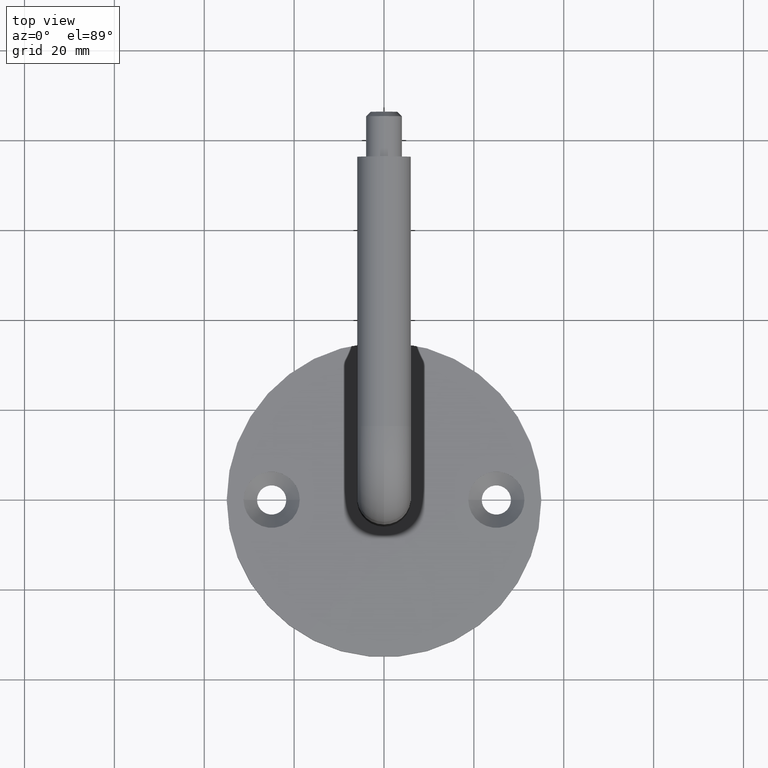
[diagram: clean part render]
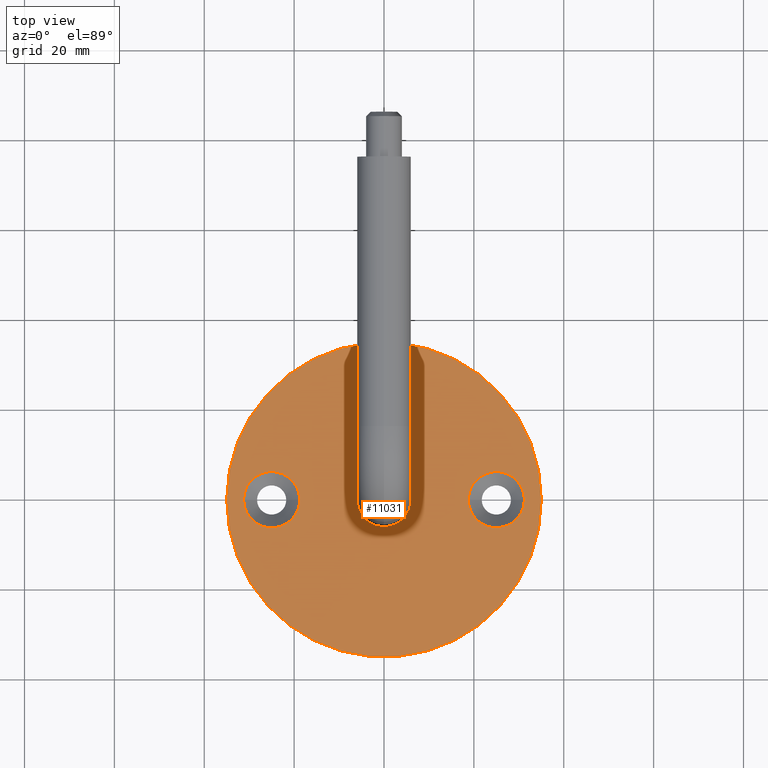
[diagram: same view with one face highlighted and labeled with its STEP entity id]
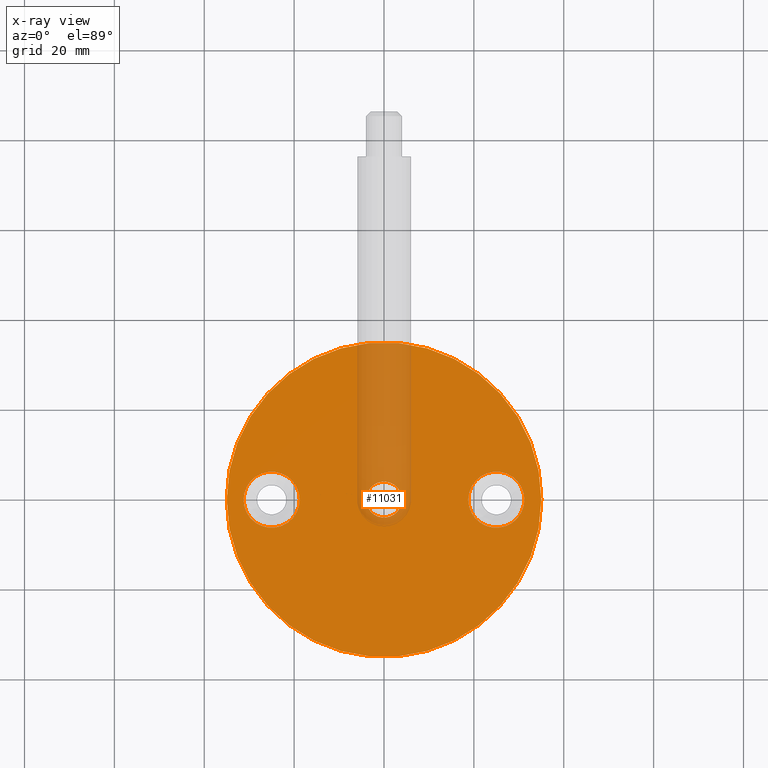
[diagram: x-ray of the same camera — body ghosted, the highlighted face saturated]
A machine part, top view. The second image highlights one B-rep face of the part: STEP entity #11031.
The next image is the same camera in x-ray: the body ghosted, the highlighted face saturated — about 12% of this face is hidden behind the body in this view.
In plain terms, the highlighted planar face has unit normal (0, 0, 1).
Its self-contained STEP definition (entity closure, byte-faithful):
#203 = CARTESIAN_POINT ( 'NONE',  ( 3.999999999999999112, 4.898587196589411843E-16, 3.999999999999999112 ) ) ;
#392 = DIRECTION ( 'NONE',  ( -0.000000000000000000, -0.000000000000000000, -1.000000000000000000 ) ) ;
#656 = EDGE_CURVE ( 'NONE', #11959, #19093, #9046, .T. ) ;
#721 = ORIENTED_EDGE ( 'NONE', *, *, #656, .F. ) ;
#1029 = AXIS2_PLACEMENT_3D ( 'NONE', #7202, #12218, #8902 ) ;
#1032 = EDGE_CURVE ( 'NONE', #12142, #2499, #7741, .T. ) ;
#1536 = DIRECTION ( 'NONE',  ( 0.000000000000000000, 0.000000000000000000, 1.000000000000000000 ) ) ;
#1626 = DIRECTION ( 'NONE',  ( 1.000000000000000000, 0.000000000000000000, 0.000000000000000000 ) ) ;
#1726 = CIRCLE ( 'NONE', #13613, 34.99999999999999289 ) ;
#2499 = VERTEX_POINT ( 'NONE', #203 ) ;
#2755 = EDGE_LOOP ( 'NONE', ( #12521, #13498 ) ) ;
#2879 = VERTEX_POINT ( 'NONE', #11173 ) ;
#3496 = AXIS2_PLACEMENT_3D ( 'NONE', #6349, #8041, #1626 ) ;
#4082 = CARTESIAN_POINT ( 'NONE',  ( -34.99999999999999289, 0.000000000000000000, 4.000000000000000000 ) ) ;
#5226 = FACE_BOUND ( 'NONE', #17728, .T. ) ;
#5615 = CARTESIAN_POINT ( 'NONE',  ( 31.25000000000000000, 0.000000000000000000, 4.000000000000000000 ) ) ;
#6238 = CARTESIAN_POINT ( 'NONE',  ( 25.00000000000000000, 0.000000000000000000, 4.000000000000000000 ) ) ;
#6349 = CARTESIAN_POINT ( 'NONE',  ( 0.000000000000000000, 0.000000000000000000, 4.000000000000000000 ) ) ;
#7082 = EDGE_CURVE ( 'NONE', #13838, #2879, #12087, .T. ) ;
#7202 = CARTESIAN_POINT ( 'NONE',  ( -25.00000000000000000, 0.000000000000000000, 4.000000000000000000 ) ) ;
#7408 = EDGE_CURVE ( 'NONE', #2879, #13838, #14453, .T. ) ;
#7510 = ORIENTED_EDGE ( 'NONE', *, *, #7408, .F. ) ;
#7531 = EDGE_LOOP ( 'NONE', ( #15003, #14921 ) ) ;
#7741 = CIRCLE ( 'NONE', #17443, 3.999999999999999112 ) ;
#8041 = DIRECTION ( 'NONE',  ( 0.000000000000000000, 0.000000000000000000, 1.000000000000000000 ) ) ;
#8102 = DIRECTION ( 'NONE',  ( 1.000000000000000000, 0.000000000000000000, -0.000000000000000000 ) ) ;
#8163 = ORIENTED_EDGE ( 'NONE', *, *, #19750, .F. ) ;
#8467 = EDGE_CURVE ( 'NONE', #19218, #10510, #19470, .T. ) ;
#8616 = AXIS2_PLACEMENT_3D ( 'NONE', #13315, #392, #16658 ) ;
#8883 = DIRECTION ( 'NONE',  ( 0.000000000000000000, 0.000000000000000000, 1.000000000000000000 ) ) ;
#8902 = DIRECTION ( 'NONE',  ( 1.000000000000000000, 0.000000000000000000, 0.000000000000000000 ) ) ;
#9046 = CIRCLE ( 'NONE', #14153, 6.249999999999998224 ) ;
#9136 = CARTESIAN_POINT ( 'NONE',  ( -25.00000000000000000, 0.000000000000000000, 4.000000000000000000 ) ) ;
#9745 = EDGE_CURVE ( 'NONE', #2499, #12142, #17670, .T. ) ;
#10213 = DIRECTION ( 'NONE',  ( -1.000000000000000000, 0.000000000000000000, 0.000000000000000000 ) ) ;
#10243 = DIRECTION ( 'NONE',  ( -0.000000000000000000, -0.000000000000000000, 1.000000000000000000 ) ) ;
#10510 = VERTEX_POINT ( 'NONE', #4082 ) ;
#11031 = ADVANCED_FACE ( 'NONE', ( #11931, #18433, #5226, #13260 ), #11394, .T. ) ;
#11173 = CARTESIAN_POINT ( 'NONE',  ( -31.25000000000000000, 7.654042494670955634E-16, 4.000000000000000000 ) ) ;
#11191 = CARTESIAN_POINT ( 'NONE',  ( 18.75000000000000355, 7.654042494670955634E-16, 4.000000000000000000 ) ) ;
#11394 = PLANE ( 'NONE',  #12530 ) ;
#11460 = EDGE_LOOP ( 'NONE', ( #12454, #7510 ) ) ;
#11494 = CARTESIAN_POINT ( 'NONE',  ( 25.00000000000000000, 0.000000000000000000, 4.000000000000000000 ) ) ;
#11901 = CARTESIAN_POINT ( 'NONE',  ( 34.99999999999999289, 4.286263797015735707E-15, 4.000000000000000000 ) ) ;
#11931 = FACE_BOUND ( 'NONE', #2755, .T. ) ;
#11959 = VERTEX_POINT ( 'NONE', #5615 ) ;
#12087 = CIRCLE ( 'NONE', #16404, 6.249999999999998224 ) ;
#12142 = VERTEX_POINT ( 'NONE', #21122 ) ;
#12218 = DIRECTION ( 'NONE',  ( -0.000000000000000000, -0.000000000000000000, 1.000000000000000000 ) ) ;
#12454 = ORIENTED_EDGE ( 'NONE', *, *, #7082, .F. ) ;
#12521 = ORIENTED_EDGE ( 'NONE', *, *, #1032, .T. ) ;
#12530 = AXIS2_PLACEMENT_3D ( 'NONE', #16318, #1536, #8102 ) ;
#12756 = DIRECTION ( 'NONE',  ( -0.000000000000000000, -0.000000000000000000, 1.000000000000000000 ) ) ;
#13260 = FACE_OUTER_BOUND ( 'NONE', #7531, .T. ) ;
#13315 = CARTESIAN_POINT ( 'NONE',  ( 0.000000000000000000, 0.000000000000000000, 3.999999999999999112 ) ) ;
#13498 = ORIENTED_EDGE ( 'NONE', *, *, #9745, .T. ) ;
#13613 = AXIS2_PLACEMENT_3D ( 'NONE', #15500, #8883, #20480 ) ;
#13838 = VERTEX_POINT ( 'NONE', #17193 ) ;
#14153 = AXIS2_PLACEMENT_3D ( 'NONE', #11494, #10243, #21403 ) ;
#14453 = CIRCLE ( 'NONE', #1029, 6.249999999999998224 ) ;
#14921 = ORIENTED_EDGE ( 'NONE', *, *, #8467, .T. ) ;
#14939 = CIRCLE ( 'NONE', #17482, 6.249999999999998224 ) ;
#15003 = ORIENTED_EDGE ( 'NONE', *, *, #19386, .T. ) ;
#15104 = DIRECTION ( 'NONE',  ( -0.000000000000000000, -0.000000000000000000, -1.000000000000000000 ) ) ;
#15500 = CARTESIAN_POINT ( 'NONE',  ( 0.000000000000000000, 0.000000000000000000, 4.000000000000000000 ) ) ;
#15682 = DIRECTION ( 'NONE',  ( -0.000000000000000000, -0.000000000000000000, 1.000000000000000000 ) ) ;
#16318 = CARTESIAN_POINT ( 'NONE',  ( 0.000000000000000000, 0.000000000000000000, 4.000000000000000000 ) ) ;
#16404 = AXIS2_PLACEMENT_3D ( 'NONE', #9136, #15682, #19122 ) ;
#16658 = DIRECTION ( 'NONE',  ( -1.000000000000000000, 0.000000000000000000, 0.000000000000000000 ) ) ;
#17193 = CARTESIAN_POINT ( 'NONE',  ( -18.75000000000000355, 0.000000000000000000, 4.000000000000000000 ) ) ;
#17443 = AXIS2_PLACEMENT_3D ( 'NONE', #20122, #15104, #10213 ) ;
#17482 = AXIS2_PLACEMENT_3D ( 'NONE', #6238, #12756, #19494 ) ;
#17670 = CIRCLE ( 'NONE', #8616, 3.999999999999999112 ) ;
#17728 = EDGE_LOOP ( 'NONE', ( #721, #8163 ) ) ;
#18433 = FACE_BOUND ( 'NONE', #11460, .T. ) ;
#19093 = VERTEX_POINT ( 'NONE', #11191 ) ;
#19122 = DIRECTION ( 'NONE',  ( 1.000000000000000000, 0.000000000000000000, 0.000000000000000000 ) ) ;
#19218 = VERTEX_POINT ( 'NONE', #11901 ) ;
#19386 = EDGE_CURVE ( 'NONE', #10510, #19218, #1726, .T. ) ;
#19470 = CIRCLE ( 'NONE', #3496, 34.99999999999999289 ) ;
#19494 = DIRECTION ( 'NONE',  ( 1.000000000000000000, 0.000000000000000000, 0.000000000000000000 ) ) ;
#19750 = EDGE_CURVE ( 'NONE', #19093, #11959, #14939, .T. ) ;
#20122 = CARTESIAN_POINT ( 'NONE',  ( 0.000000000000000000, 0.000000000000000000, 3.999999999999999112 ) ) ;
#20480 = DIRECTION ( 'NONE',  ( 1.000000000000000000, 0.000000000000000000, 0.000000000000000000 ) ) ;
#21122 = CARTESIAN_POINT ( 'NONE',  ( -3.999999999999999112, 0.000000000000000000, 3.999999999999999112 ) ) ;
#21403 = DIRECTION ( 'NONE',  ( 1.000000000000000000, 0.000000000000000000, 0.000000000000000000 ) ) ;